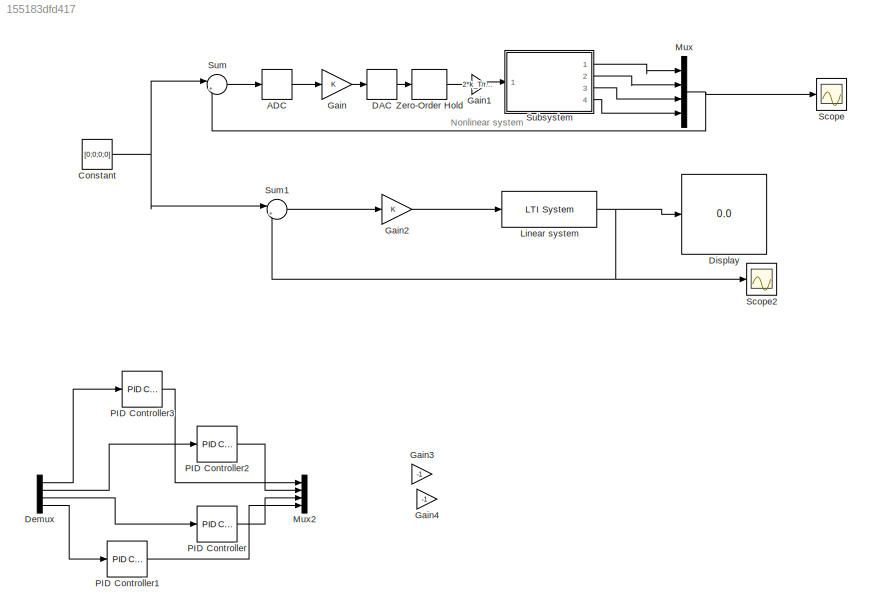
MODEL slx_155183dfd417
KIND model
CONFIG AbsTol = auto
CONFIG EnableMultiTasking = off
CONFIG FixedStep = auto
CONFIG MaxStep = auto
CONFIG MinStep = auto
CONFIG RelTol = 1e-3
CONFIG SampleTimeConstraint = Unconstrained
CONFIG Solver = VariableStepAuto
CONFIG SolverName = VariableStepAuto
CONFIG StartTime = 0.0
CONFIG StopTime = 10
BLOCK [Quantizer] ADC
  QuantizationInterval = 4/1024
BLOCK [Constant] Constant
  Value = [0;0;0;0]
BLOCK [Quantizer] DAC
  QuantizationInterval = 10/256
BLOCK [Demux] Demux
  Commented = on
  DisplayOption = bar
  Ports = [1, 4]
BLOCK [Display] Display
  Decimation = 1
  Ports = [1]
BLOCK [Gain] Gain
  Gain = K
  Multiplication = Matrix(K*u)
  OutDataTypeStr = Inherit: Inherit via internal rule
  ParamDataTypeStr = Inherit: Inherit via internal rule
  SaturateOnIntegerOverflow = off
BLOCK [Gain] Gain1
  Gain = 2*k_T/r/R_1
  OutDataTypeStr = Inherit: Inherit via internal rule
  ParamDataTypeStr = Inherit: Inherit via internal rule
  SaturateOnIntegerOverflow = off
BLOCK [Gain] Gain2
  Gain = K
  Multiplication = Matrix(K*u)
  OutDataTypeStr = Inherit: Inherit via internal rule
  ParamDataTypeStr = Inherit: Inherit via internal rule
  SaturateOnIntegerOverflow = off
BLOCK [Gain] Gain3
  Commented = on
  Gain = -1
  OutDataTypeStr = Inherit: Inherit via internal rule
  ParamDataTypeStr = Inherit: Inherit via internal rule
  SaturateOnIntegerOverflow = off
BLOCK [Gain] Gain4
  Commented = on
  Gain = -1
  OutDataTypeStr = Inherit: Inherit via internal rule
  ParamDataTypeStr = Inherit: Inherit via internal rule
  SaturateOnIntegerOverflow = off
BLOCK [Reference] Linear system  REF=cstblocks/LTI System
  Ports = [1, 1]
  SourceBlock = cstblocks/LTI System
  SourceProductBaseCode = CT
  SourceProductName = Control System Toolbox
  SourceType = LTI Block
BLOCK [Mux] Mux
  DisplayOption = bar
  Ports = [4, 1]
BLOCK [Mux] Mux2
  Commented = on
  DisplayOption = bar
  Ports = [4, 1]
BLOCK [Reference] PID Controller  REF=simulink/Continuous/PID Controller
  Commented = on
  Ports = [1, 1]
  SourceBlock = simulink/Continuous/PID Controller
  SourceProductBaseCode = SL
  SourceProductName = Simulink
  SourceType = PID 1dof
BLOCK [Reference] PID Controller1  REF=simulink/Continuous/PID Controller
  Commented = on
  Ports = [1, 1]
  SourceBlock = simulink/Continuous/PID Controller
  SourceProductBaseCode = SL
  SourceProductName = Simulink
  SourceType = PID 1dof
BLOCK [Reference] PID Controller2  REF=simulink/Continuous/PID Controller
  Commented = on
  Ports = [1, 1]
  SourceBlock = simulink/Continuous/PID Controller
  SourceProductBaseCode = SL
  SourceProductName = Simulink
  SourceType = PID 1dof
BLOCK [Reference] PID Controller3  REF=simulink/Continuous/PID Controller
  Commented = on
  Ports = [1, 1]
  SourceBlock = simulink/Continuous/PID Controller
  SourceProductBaseCode = SL
  SourceProductName = Simulink
  SourceType = PID 1dof
BLOCK [Scope] Scope
  Floating = off
  NumInputPorts = 1
  Ports = [1]
  ScopeSpecificationString = Simulink.scopes.TimeScopeBlockCfg('CurrentConfiguration', extmgr.ConfigurationSet(extmgr.Configuration('Core','General UI',true),extmgr.Configuration('Core','Source UI',true),extmgr.Configuration('Sources','WiredSimulink',true),extmgr.Configuration('Visuals','Time Domain',true,'SerializedDisplays',{struct('MinYLimReal','-3.6671','MaxYLimReal','0.14035','YLabelReal','','MinYLimMag','0.00000','MaxYL...<+1442ch>
BLOCK [Scope] Scope2
  Floating = off
  NumInputPorts = 1
  Ports = [1]
  ScopeSpecificationString = Simulink.scopes.TimeScopeBlockCfg('CurrentConfiguration', extmgr.ConfigurationSet(extmgr.Configuration('Core','General UI',true),extmgr.Configuration('Core','Source UI',true),extmgr.Configuration('Sources','WiredSimulink',true,'DataLoggingVariableName','ScopeData2'),extmgr.Configuration('Visuals','Time Domain',true,'SerializedDisplays',{struct('MinYLimReal','-1.11767','MaxYLimReal','0.2353','YLabe...<+1454ch>
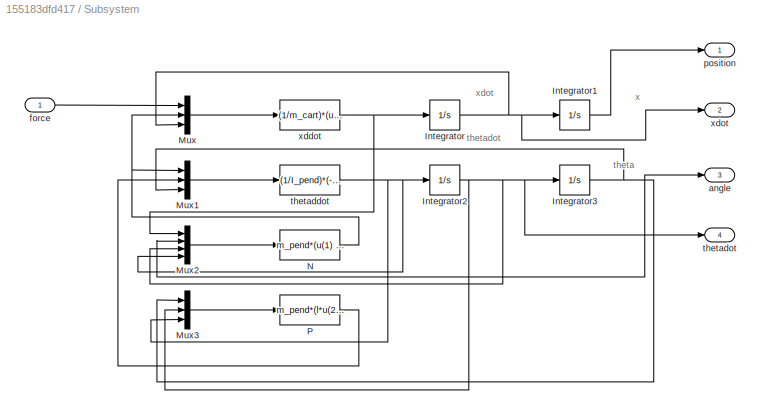
BLOCK [SubSystem] Subsystem
  Ports = [1, 4]
  RequestExecContextInheritance = off
BLOCK [Integrator] Subsystem/Integrator
  ContinuousStateAttributes = 'xdot'
  Ports = [1, 1]
BLOCK [Integrator] Subsystem/Integrator1
  ContinuousStateAttributes = 'x'
  Ports = [1, 1]
BLOCK [Integrator] Subsystem/Integrator2
  ContinuousStateAttributes = 'thetadot'
  Ports = [1, 1]
BLOCK [Integrator] Subsystem/Integrator3
  ContinuousStateAttributes = 'theta'
  InitialCondition = theta
  Ports = [1, 1]
BLOCK [Mux] Subsystem/Mux
  DisplayOption = bar
  Inputs = 3
  Ports = [3, 1]
BLOCK [Mux] Subsystem/Mux1
  DisplayOption = bar
  Inputs = 3
  Ports = [3, 1]
BLOCK [Mux] Subsystem/Mux2
  DisplayOption = bar
  Ports = [4, 1]
BLOCK [Mux] Subsystem/Mux3
  DisplayOption = bar
  Inputs = 3
  Ports = [3, 1]
BLOCK [Fcn] Subsystem/N
  Expr = m_pend*(u(1) - l*u(3)^2*sin(u(2)) +l*u(4)*cos(u(2)) )
BLOCK [Fcn] Subsystem/P
  Expr = m_pend*(l*u(2)^2*cos(u(1)) + l*u(3)*sin(u(1)) + g)
BLOCK [Outport] Subsystem/angle
  IconDisplay = Port number
  Port = 3
BLOCK [Inport] Subsystem/force
  IconDisplay = Port number
BLOCK [Outport] Subsystem/position
  IconDisplay = Port number
BLOCK [Fcn] Subsystem/thetaddot
  Expr = (1/I_pend)*(-u(1)*cos(u(3)) - u(2)*l*sin(u(3)))
BLOCK [Outport] Subsystem/thetadot
  IconDisplay = Port number
  Port = 4
BLOCK [Fcn] Subsystem/xddot 
  Expr = (1/m_cart)*(u(1)-u(2)- f*u(3))
BLOCK [Outport] Subsystem/xdot
  IconDisplay = Port number
  Port = 2
BLOCK [Sum] Sum
  IconShape = round
  InputSameDT = off
  Inputs = |+-
  OutDataTypeStr = Inherit: Inherit via internal rule
  Ports = [2, 1]
  SaturateOnIntegerOverflow = off
BLOCK [Sum] Sum1
  IconShape = round
  InputSameDT = off
  Inputs = |+-
  OutDataTypeStr = Inherit: Inherit via internal rule
  Ports = [2, 1]
  SaturateOnIntegerOverflow = off
BLOCK [ZeroOrderHold] Zero-Order Hold
  SampleTime = -1
ANNOTATION (root): Nonlinear system
ANNOTATION Subsystem: theta
ANNOTATION Subsystem: thetadot
ANNOTATION Subsystem: x
ANNOTATION Subsystem: xdot
LINE ADC:1 -> Gain:1
NET Constant:1 -> Sum1:1, Sum:1
LINE DAC:1 -> Zero-Order Hold:1
LINE Demux:1 -> PID Controller3:1
LINE Demux:2 -> PID Controller2:1
LINE Demux:3 -> PID Controller:1
LINE Demux:4 -> PID Controller1:1
LINE Gain1:1 -> Subsystem:1
LINE Gain2:1 -> Linear system:1
LINE Gain:1 -> DAC:1
NET Linear system:1 -> Display:1, Scope2:1, Sum1:2
NET Mux:1 -> Scope:1, Sum:2
LINE PID Controller1:1 -> Mux2:4
LINE PID Controller2:1 -> Mux2:2
LINE PID Controller3:1 -> Mux2:1
LINE PID Controller:1 -> Mux2:3
LINE Subsystem/Integrator1:1 -> Subsystem/position:1
NET Subsystem/Integrator2:1 -> Subsystem/Integrator3:1, Subsystem/Mux2:3, Subsystem/Mux3:2, Subsystem/thetadot:1
NET Subsystem/Integrator3:1 -> Subsystem/Mux1:3, Subsystem/Mux2:2, Subsystem/Mux3:1, Subsystem/angle:1
NET Subsystem/Integrator:1 -> Subsystem/Integrator1:1, Subsystem/Mux:3, Subsystem/xdot:1
LINE Subsystem/Mux1:1 -> Subsystem/thetaddot:1
LINE Subsystem/Mux2:1 -> Subsystem/N:1
LINE Subsystem/Mux3:1 -> Subsystem/P:1
LINE Subsystem/Mux:1 -> Subsystem/xddot :1
NET Subsystem/N:1 -> Subsystem/Mux1:1, Subsystem/Mux:2
LINE Subsystem/P:1 -> Subsystem/Mux1:2
LINE Subsystem/force:1 -> Subsystem/Mux:1
NET Subsystem/thetaddot:1 -> Subsystem/Integrator2:1, Subsystem/Mux2:4, Subsystem/Mux3:3
NET Subsystem/xddot :1 -> Subsystem/Integrator:1, Subsystem/Mux2:1
LINE Subsystem:1 -> Mux:1
LINE Subsystem:2 -> Mux:2
LINE Subsystem:3 -> Mux:3
LINE Subsystem:4 -> Mux:4
LINE Sum1:1 -> Gain2:1
LINE Sum:1 -> ADC:1
LINE Zero-Order Hold:1 -> Gain1:1
note: NET lines group one-source signal fan-out (src -> all destinations, sorted); 1:1 wires keep LINE
